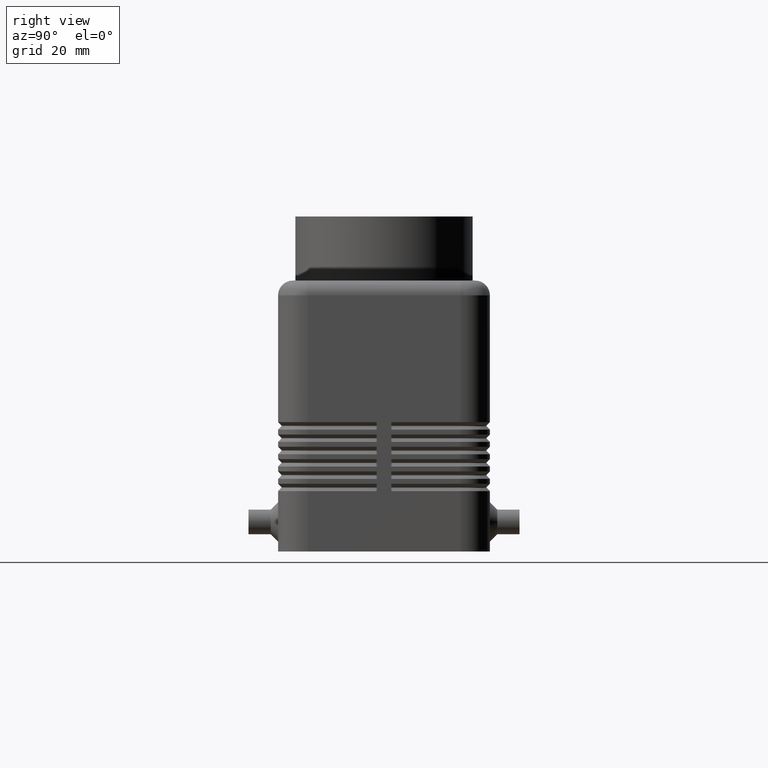
[diagram: clean part render]
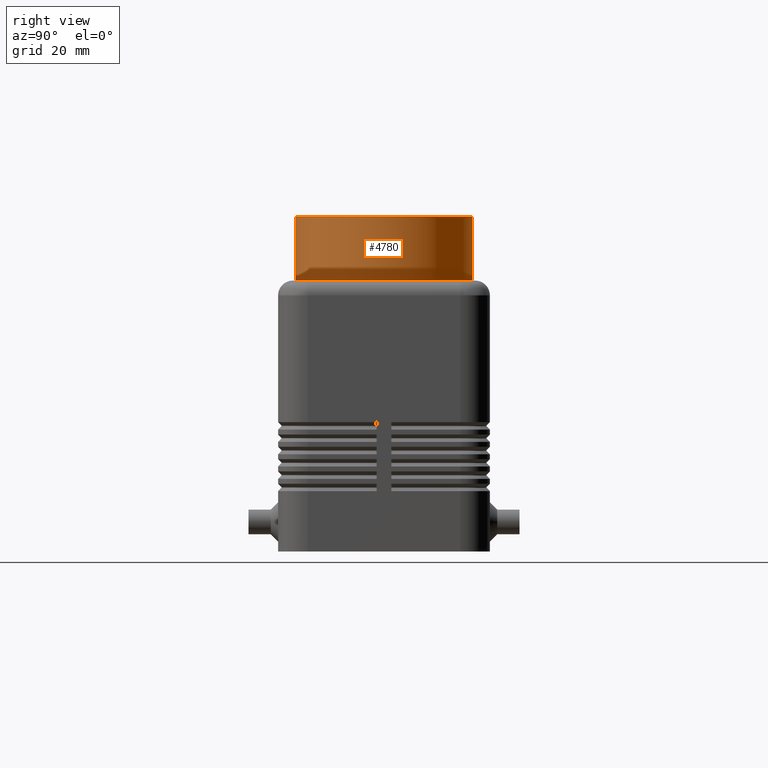
[diagram: same view with one face highlighted and labeled with its STEP entity id]
A machine part, right view. The second image highlights one B-rep face of the part: STEP entity #4780.
In plain terms, the highlighted cylindrical surface (partial cylindrical patch) has radius 18 mm, axis along (0, 0, -1).
Its self-contained STEP definition (entity closure, byte-faithful):
#4739=CARTESIAN_POINT('',(0.0,-4.474391E-015,60.0));
#4740=DIRECTION('',(0.0,2.237195E-016,-1.0));
#4741=DIRECTION('',(0.0,1.0,0.0));
#4742=AXIS2_PLACEMENT_3D('',#4739,#4740,#4741);
#4743=CYLINDRICAL_SURFACE('',#4742,18.000000000000004);
#4744=CARTESIAN_POINT('',(0.0,17.999999999999996,68.0));
#4745=VERTEX_POINT('',#4744);
#4746=CARTESIAN_POINT('',(-2.204291E-015,18.0,55.0));
#4747=VERTEX_POINT('',#4746);
#4748=CARTESIAN_POINT('',(0.0,17.999999999999996,68.0));
#4749=DIRECTION('',(0.0,0.0,-1.0));
#4750=VECTOR('',#4749,13.0);
#4751=LINE('',#4748,#4750);
#4752=EDGE_CURVE('',#4745,#4747,#4751,.T.);
#4753=ORIENTED_EDGE('',*,*,#4752,.F.);
#4754=CARTESIAN_POINT('',(2.204291E-015,-18.000000000000011,68.0));
#4755=VERTEX_POINT('',#4754);
#4756=CARTESIAN_POINT('',(0.0,-6.264147E-015,68.0));
#4757=DIRECTION('',(0.0,0.0,-1.0));
#4758=DIRECTION('',(0.0,1.0,0.0));
#4759=AXIS2_PLACEMENT_3D('',#4756,#4757,#4758);
#4760=CIRCLE('',#4759,18.000000000000004);
#4761=EDGE_CURVE('',#4745,#4755,#4760,.T.);
#4762=ORIENTED_EDGE('',*,*,#4761,.T.);
#4763=CARTESIAN_POINT('',(-2.204291E-015,-18.000000000000007,54.999999999999993));
#4764=VERTEX_POINT('',#4763);
#4765=CARTESIAN_POINT('',(-2.204291E-015,-18.000000000000007,54.999999999999993));
#4766=DIRECTION('',(0.0,0.0,1.0));
#4767=VECTOR('',#4766,13.000000000000007);
#4768=LINE('',#4765,#4767);
#4769=EDGE_CURVE('',#4764,#4755,#4768,.T.);
#4770=ORIENTED_EDGE('',*,*,#4769,.F.);
#4771=CARTESIAN_POINT('',(0.0,-3.355793E-015,55.0));
#4772=DIRECTION('',(0.0,0.0,-1.0));
#4773=DIRECTION('',(0.0,1.0,0.0));
#4774=AXIS2_PLACEMENT_3D('',#4771,#4772,#4773);
#4775=CIRCLE('',#4774,18.000000000000004);
#4776=EDGE_CURVE('',#4747,#4764,#4775,.T.);
#4777=ORIENTED_EDGE('',*,*,#4776,.F.);
#4778=EDGE_LOOP('',(#4753,#4762,#4770,#4777));
#4779=FACE_OUTER_BOUND('',#4778,.T.);
#4780=ADVANCED_FACE('',(#4779),#4743,.T.);